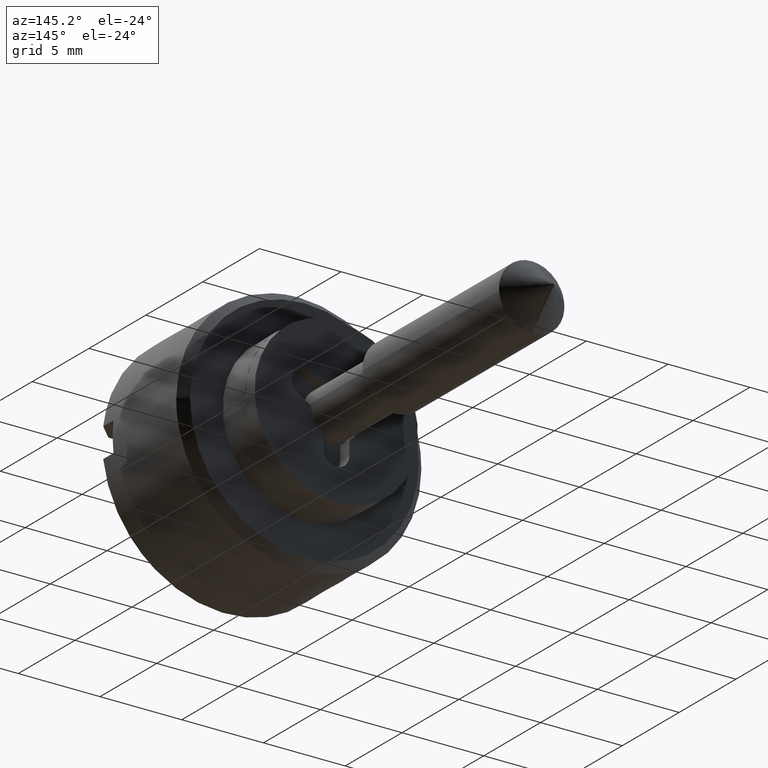
[diagram: clean part render]
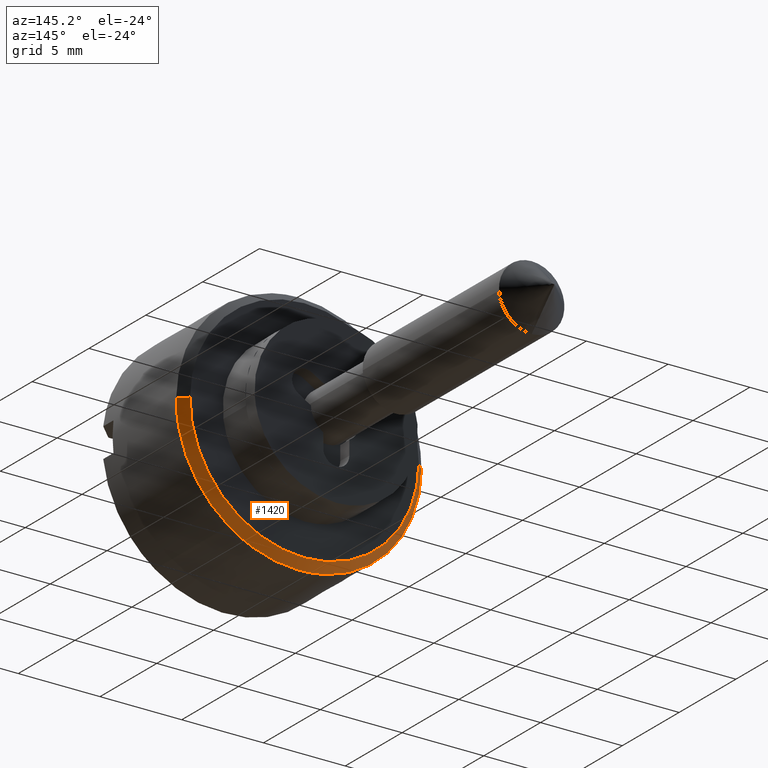
[diagram: same view with one face highlighted and labeled with its STEP entity id]
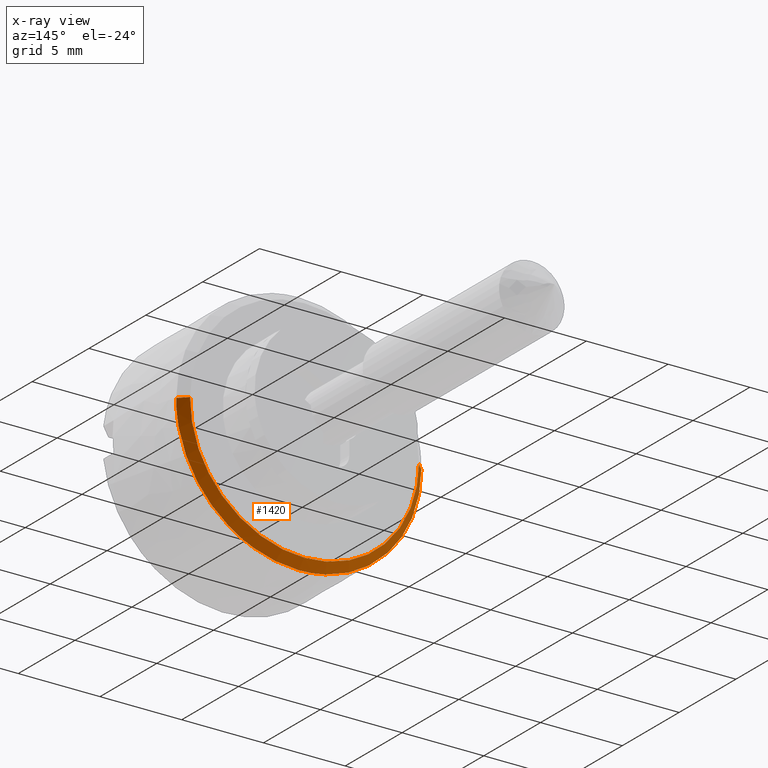
[diagram: x-ray of the same camera — body ghosted, the highlighted face saturated]
A machine part, auxiliary view. The second image highlights one B-rep face of the part: STEP entity #1420.
The next image is the same camera in x-ray: the body ghosted, the highlighted face saturated — about 0% of this face is hidden behind the body in this view.
In plain terms, the highlighted face is a freeform B-spline surface patch.
Its self-contained STEP definition (entity closure, byte-faithful):
#1227=CARTESIAN_POINT('',(-2.500000000001232,-7.499714422982490,0.065449016247301));
#1228=VERTEX_POINT('',#1227);
#1244=CARTESIAN_POINT('',(-2.000000000002619,-6.999733461451649,0.061085748507914));
#1245=VERTEX_POINT('',#1244);
#1246=CARTESIAN_POINT('',(-2.000000000002619,-6.999733461451649,0.061085748507914));
#1247=CARTESIAN_POINT('',(-2.500000000001232,-7.499714422982490,0.065449016247301));
#1248=QUASI_UNIFORM_CURVE('',1,(#1246,#1247),.UNSPECIFIED.,.F.,.U.);
#1249=EDGE_CURVE('',#1245,#1228,#1248,.T.);
#1266=CARTESIAN_POINT('',(-2.000000000002619,6.999733461451649,-0.061085748507914));
#1267=VERTEX_POINT('',#1266);
#1283=CARTESIAN_POINT('',(-2.500000000001232,7.499714422982490,-0.065449016247301));
#1284=VERTEX_POINT('',#1283);
#1285=CARTESIAN_POINT('',(-2.000000000002619,6.999733461451649,-0.061085748507914));
#1286=CARTESIAN_POINT('',(-2.500000000001232,7.499714422982490,-0.065449016247301));
#1287=QUASI_UNIFORM_CURVE('',1,(#1285,#1286),.UNSPECIFIED.,.F.,.U.);
#1288=EDGE_CURVE('',#1267,#1284,#1287,.T.);
#1323=CARTESIAN_POINT('',(-1.987500000000001,6.987233937410895,-0.060976666794888));
#1324=CARTESIAN_POINT('',(-1.987500000000001,6.926257270616007,-7.048210604205784));
#1325=CARTESIAN_POINT('',(-1.987500000000001,-0.060976666794888,-6.987233937410895));
#1326=CARTESIAN_POINT('',(-1.987500000000001,-7.048210604205784,-6.926257270616007));
#1327=CARTESIAN_POINT('',(-1.987500000000001,-6.987233937410895,0.060976666794888));
#1328=CARTESIAN_POINT('',(-2.512812499999944,7.512526435120544,-0.065560824973877));
#1329=CARTESIAN_POINT('',(-2.512812499999944,7.446965610146667,-7.578087260094423));
#1330=CARTESIAN_POINT('',(-2.512812499999944,-0.065560824973877,-7.512526435120544));
#1331=CARTESIAN_POINT('',(-2.512812499999944,-7.578087260094423,-7.446965610146667));
#1332=CARTESIAN_POINT('',(-2.512812499999944,-7.512526435120544,0.065560824973877));
#1340=(BOUNDED_SURFACE()B_SPLINE_SURFACE(2,1,((#1323,#1328),(#1324,#1329),(#1325,#1330),(#1326,#1331),(#1327,#1332)),.UNSPECIFIED.,.F.,.F.,.U.)B_SPLINE_SURFACE_WITH_KNOTS((3,2,3),(2,2),(0.0,12.447635316264471,24.895270632528948),(0.0,1.0),.UNSPECIFIED.)GEOMETRIC_REPRESENTATION_ITEM()RATIONAL_B_SPLINE_SURFACE(((1.0,1.0),(0.707106781186548,0.707106781186548),(1.0,1.0),(0.707106781186548,0.707106781186548),(1.0,1.0)))REPRESENTATION_ITEM('')SURFACE());
#1341=CARTESIAN_POINT('',(-2.499999999999945,-4.287827432851608,-6.153416604300274));
#1342=VERTEX_POINT('',#1341);
#1343=CARTESIAN_POINT('',(-2.499999999999944,-4.287827432851607,-6.153416604300274));
#1344=CARTESIAN_POINT('',(-2.499999999999945,-7.500000000000000,-3.915108597843588));
#1345=CARTESIAN_POINT('',(-2.499999999999945,-7.500000000000000,0.0));
#1346=CARTESIAN_POINT('',(-2.499999999999945,-7.500000000000000,0.032725131164750));
#1347=CARTESIAN_POINT('',(-2.500000000001232,-7.499714422982490,0.065449016247301));
#1355=(BOUNDED_CURVE()B_SPLINE_CURVE(2,(#1343,#1344,#1345,#1346,#1347),.UNSPECIFIED.,.F.,.U.)B_SPLINE_CURVE_WITH_KNOTS((3,2,3),(0.098251831018926,0.250000000000000,0.251539894335433),.UNSPECIFIED.)CURVE()GEOMETRIC_REPRESENTATION_ITEM()RATIONAL_B_SPLINE_CURVE((0.860259141415425,0.822215961352342,1.0,0.998195901565850,0.996414028099374))REPRESENTATION_ITEM(''));
#1356=EDGE_CURVE('',#1342,#1228,#1355,.T.);
#1357=ORIENTED_EDGE('',*,*,#1356,.F.);
#1358=CARTESIAN_POINT('',(-2.499999999999945,0.0,-7.500000000000000));
#1359=VERTEX_POINT('',#1358);
#1360=CARTESIAN_POINT('',(-2.499999999999945,0.0,-7.500000000000000));
#1361=CARTESIAN_POINT('',(-2.499999999999945,-2.355359590819155,-7.500000000000001));
#1362=CARTESIAN_POINT('',(-2.499999999999944,-4.287827432851607,-6.153416604300274));
#1370=(BOUNDED_CURVE()B_SPLINE_CURVE(2,(#1360,#1361,#1362),.UNSPECIFIED.,.F.,.U.)B_SPLINE_CURVE_WITH_KNOTS((3,3),(0.0,0.098251831018926),.UNSPECIFIED.)CURVE()GEOMETRIC_REPRESENTATION_ITEM()RATIONAL_B_SPLINE_CURVE((1.0,0.884890819834205,0.860259141415425))REPRESENTATION_ITEM(''));
#1371=EDGE_CURVE('',#1359,#1342,#1370,.T.);
#1372=ORIENTED_EDGE('',*,*,#1371,.F.);
#1373=CARTESIAN_POINT('',(-2.500000000001232,7.499714422982490,-0.065449016247301));
#1374=CARTESIAN_POINT('',(-2.499999999999945,7.434834079443530,-7.500000000000001));
#1375=CARTESIAN_POINT('',(-2.499999999999945,0.0,-7.500000000000000));
#1383=(BOUNDED_CURVE()B_SPLINE_CURVE(2,(#1373,#1374,#1375),.UNSPECIFIED.,.F.,.U.)B_SPLINE_CURVE_WITH_KNOTS((3,3),(0.751539894335433,1.0),.UNSPECIFIED.)CURVE()GEOMETRIC_REPRESENTATION_ITEM()RATIONAL_B_SPLINE_CURVE((0.996414028099375,0.708910879620697,1.0))REPRESENTATION_ITEM(''));
#1384=EDGE_CURVE('',#1284,#1359,#1383,.T.);
#1385=ORIENTED_EDGE('',*,*,#1384,.F.);
#1386=ORIENTED_EDGE('',*,*,#1288,.F.);
#1387=CARTESIAN_POINT('',(-2.0,0.0,-7.0));
#1388=VERTEX_POINT('',#1387);
#1389=CARTESIAN_POINT('',(-2.0,0.0,-7.0));
#1390=CARTESIAN_POINT('',(-2.000000000000000,6.939178474126631,-6.999999999999998));
#1391=CARTESIAN_POINT('',(-2.000000000002619,6.999733461451649,-0.061085748507914));
#1399=(BOUNDED_CURVE()B_SPLINE_CURVE(2,(#1389,#1390,#1391),.UNSPECIFIED.,.F.,.U.)B_SPLINE_CURVE_WITH_KNOTS((3,3),(0.0,0.248460105664043),.UNSPECIFIED.)CURVE()GEOMETRIC_REPRESENTATION_ITEM()RATIONAL_B_SPLINE_CURVE((1.0,0.708910879621312,0.996414028098161))REPRESENTATION_ITEM(''));
#1400=EDGE_CURVE('',#1388,#1267,#1399,.T.);
#1401=ORIENTED_EDGE('',*,*,#1400,.F.);
#1402=CARTESIAN_POINT('',(-2.000000000002619,-6.999733461451649,0.061085748507914));
#1403=CARTESIAN_POINT('',(-2.000000000000000,-7.0,0.030543455764186));
#1404=CARTESIAN_POINT('',(-2.0,-7.0,0.0));
#1405=CARTESIAN_POINT('',(-2.0,-6.999999999999999,-6.999999999999999));
#1406=CARTESIAN_POINT('',(-2.0,0.0,-7.0));
#1414=(BOUNDED_CURVE()B_SPLINE_CURVE(2,(#1402,#1403,#1404,#1405,#1406),.UNSPECIFIED.,.F.,.U.)B_SPLINE_CURVE_WITH_KNOTS((3,2,3),(0.748460105664043,0.750000000000000,1.0),.UNSPECIFIED.)CURVE()GEOMETRIC_REPRESENTATION_ITEM()RATIONAL_B_SPLINE_CURVE((0.996414028098161,0.998195901565236,1.0,0.707106781186547,1.0))REPRESENTATION_ITEM(''));
#1415=EDGE_CURVE('',#1245,#1388,#1414,.T.);
#1416=ORIENTED_EDGE('',*,*,#1415,.F.);
#1417=ORIENTED_EDGE('',*,*,#1249,.T.);
#1418=EDGE_LOOP('',(#1357,#1372,#1385,#1386,#1401,#1416,#1417));
#1419=FACE_OUTER_BOUND('',#1418,.T.);
#1420=ADVANCED_FACE('',(#1419),#1340,.T.);